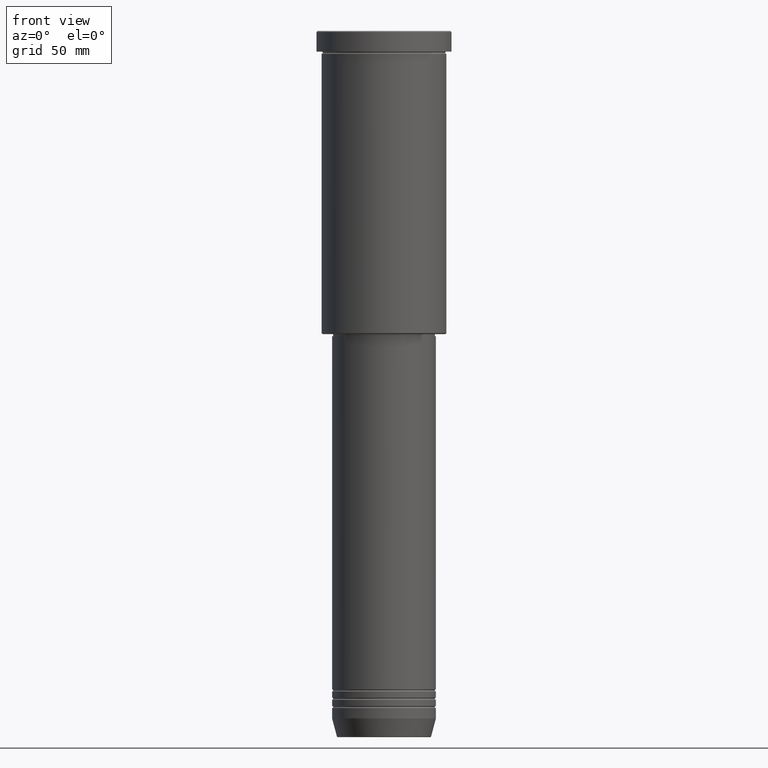
[diagram: clean part render]
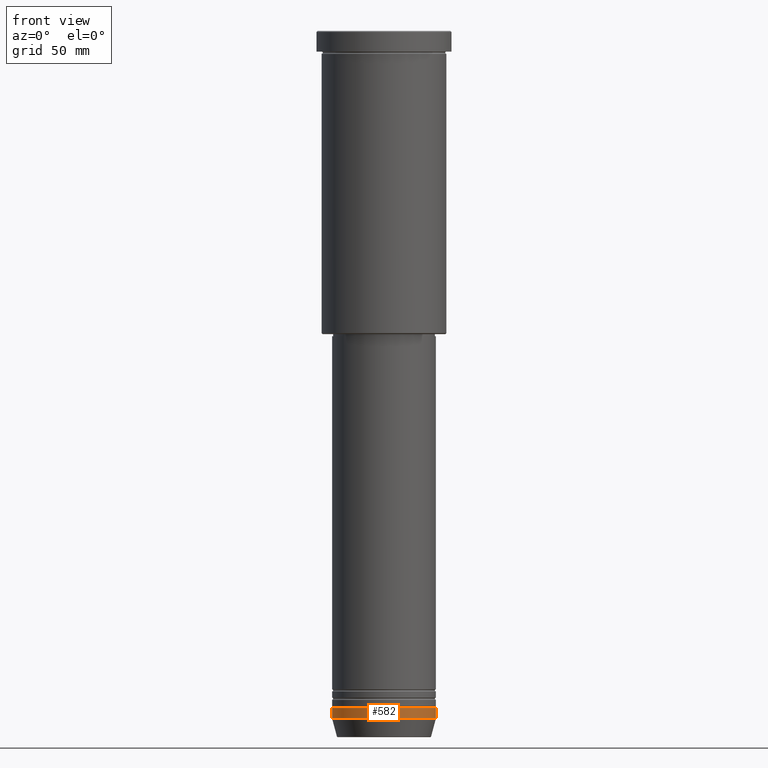
[diagram: same view with one face highlighted and labeled with its STEP entity id]
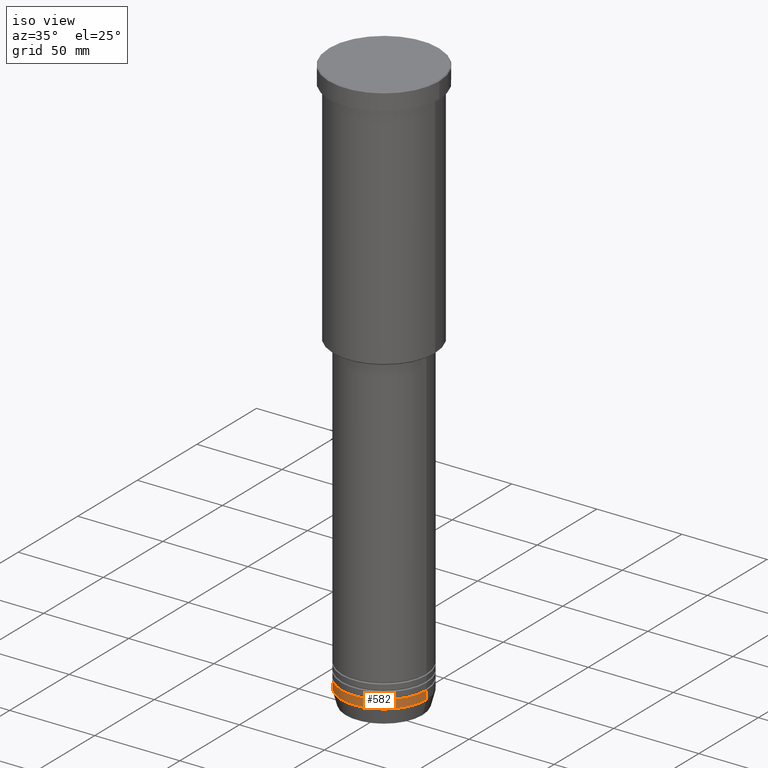
[diagram: same view with one face highlighted and labeled with its STEP entity id]
A machine part, front view. The second image highlights one B-rep face of the part: STEP entity #582.
A second angle (iso view) of the same face is appended — the face is thin or edge-on in the first view.
In plain terms, the highlighted cylindrical surface (partial cylindrical patch) has radius 25 mm, axis along (-0, -0, 1).
Its self-contained STEP definition (entity closure, byte-faithful):
#31 = EDGE_LOOP ( 'NONE', ( #754, #639, #412, #867 ) ) ;
#42 = DIRECTION ( 'NONE',  ( -0.000000000000000000, -0.000000000000000000, 1.000000000000000000 ) ) ;
#51 = DIRECTION ( 'NONE',  ( -0.000000000000000000, -0.000000000000000000, 1.000000000000000000 ) ) ;
#110 = CARTESIAN_POINT ( 'NONE',  ( 25.00000000000000000, 0.000000000000000000, -331.0000000000000000 ) ) ;
#133 = EDGE_CURVE ( 'NONE', #880, #188, #937, .T. ) ;
#144 = LINE ( 'NONE', #855, #494 ) ;
#188 = VERTEX_POINT ( 'NONE', #110 ) ;
#189 = DIRECTION ( 'NONE',  ( -0.000000000000000000, -0.000000000000000000, 1.000000000000000000 ) ) ;
#193 = AXIS2_PLACEMENT_3D ( 'NONE', #1141, #1059, #962 ) ;
#205 = DIRECTION ( 'NONE',  ( 1.000000000000000000, 0.000000000000000000, 0.000000000000000000 ) ) ;
#369 = EDGE_CURVE ( 'NONE', #188, #1121, #1013, .T. ) ;
#412 = ORIENTED_EDGE ( 'NONE', *, *, #369, .T. ) ;
#414 = VECTOR ( 'NONE', #51, 1000.000000000000000 ) ;
#422 = DIRECTION ( 'NONE',  ( 1.000000000000000000, 0.000000000000000000, 0.000000000000000000 ) ) ;
#445 = CARTESIAN_POINT ( 'NONE',  ( 25.00000000000000000, 0.000000000000000000, -326.0000000000000568 ) ) ;
#494 = VECTOR ( 'NONE', #1039, 1000.000000000000000 ) ;
#526 = EDGE_CURVE ( 'NONE', #880, #527, #144, .T. ) ;
#527 = VERTEX_POINT ( 'NONE', #945 ) ;
#545 = AXIS2_PLACEMENT_3D ( 'NONE', #864, #42, #422 ) ;
#576 = EDGE_CURVE ( 'NONE', #527, #1121, #665, .T. ) ;
#582 = ADVANCED_FACE ( 'NONE', ( #881 ), #889, .T. ) ;
#639 = ORIENTED_EDGE ( 'NONE', *, *, #133, .T. ) ;
#650 = CARTESIAN_POINT ( 'NONE',  ( -25.00000000000000000, 3.061616997868383043E-15, -331.0000000000000000 ) ) ;
#665 = CIRCLE ( 'NONE', #545, 25.00000000000000000 ) ;
#754 = ORIENTED_EDGE ( 'NONE', *, *, #526, .F. ) ;
#814 = CARTESIAN_POINT ( 'NONE',  ( 0.000000000000000000, 0.000000000000000000, -331.0000000000000000 ) ) ;
#855 = CARTESIAN_POINT ( 'NONE',  ( -25.00000000000000000, 3.061616997868383043E-15, 0.000000000000000000 ) ) ;
#864 = CARTESIAN_POINT ( 'NONE',  ( 0.000000000000000000, 0.000000000000000000, -326.0000000000000568 ) ) ;
#867 = ORIENTED_EDGE ( 'NONE', *, *, #576, .F. ) ;
#872 = CARTESIAN_POINT ( 'NONE',  ( 25.00000000000000000, 0.000000000000000000, 0.000000000000000000 ) ) ;
#880 = VERTEX_POINT ( 'NONE', #650 ) ;
#881 = FACE_OUTER_BOUND ( 'NONE', #31, .T. ) ;
#889 = CYLINDRICAL_SURFACE ( 'NONE', #193, 25.00000000000000000 ) ;
#937 = CIRCLE ( 'NONE', #994, 25.00000000000000000 ) ;
#945 = CARTESIAN_POINT ( 'NONE',  ( -25.00000000000000000, 3.061616997868383043E-15, -326.0000000000000568 ) ) ;
#962 = DIRECTION ( 'NONE',  ( 1.000000000000000000, 0.000000000000000000, 0.000000000000000000 ) ) ;
#994 = AXIS2_PLACEMENT_3D ( 'NONE', #814, #189, #205 ) ;
#1013 = LINE ( 'NONE', #872, #414 ) ;
#1039 = DIRECTION ( 'NONE',  ( -0.000000000000000000, -0.000000000000000000, 1.000000000000000000 ) ) ;
#1059 = DIRECTION ( 'NONE',  ( -0.000000000000000000, -0.000000000000000000, 1.000000000000000000 ) ) ;
#1121 = VERTEX_POINT ( 'NONE', #445 ) ;
#1141 = CARTESIAN_POINT ( 'NONE',  ( 0.000000000000000000, 0.000000000000000000, 0.000000000000000000 ) ) ;